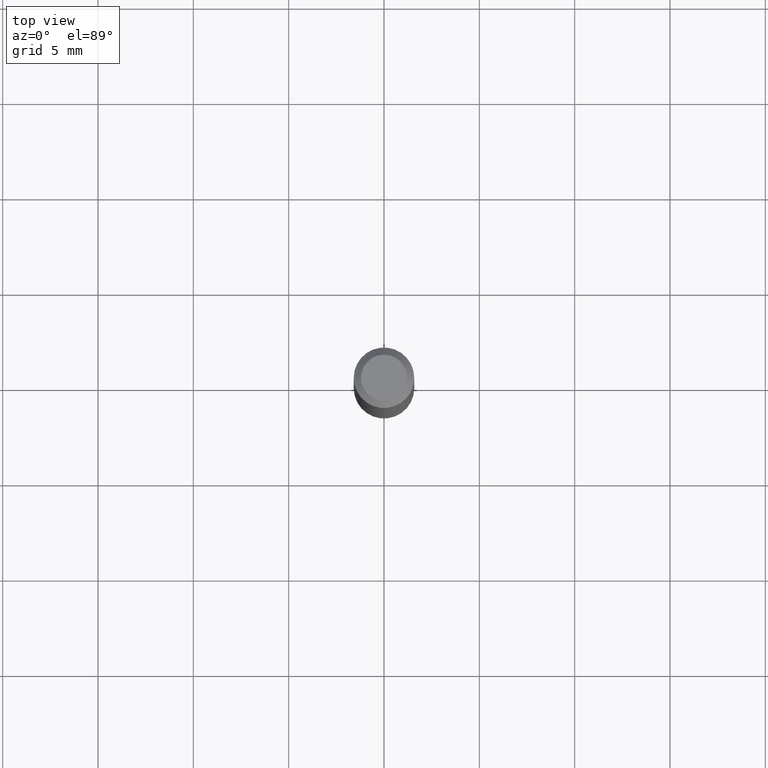
[diagram: clean part render]
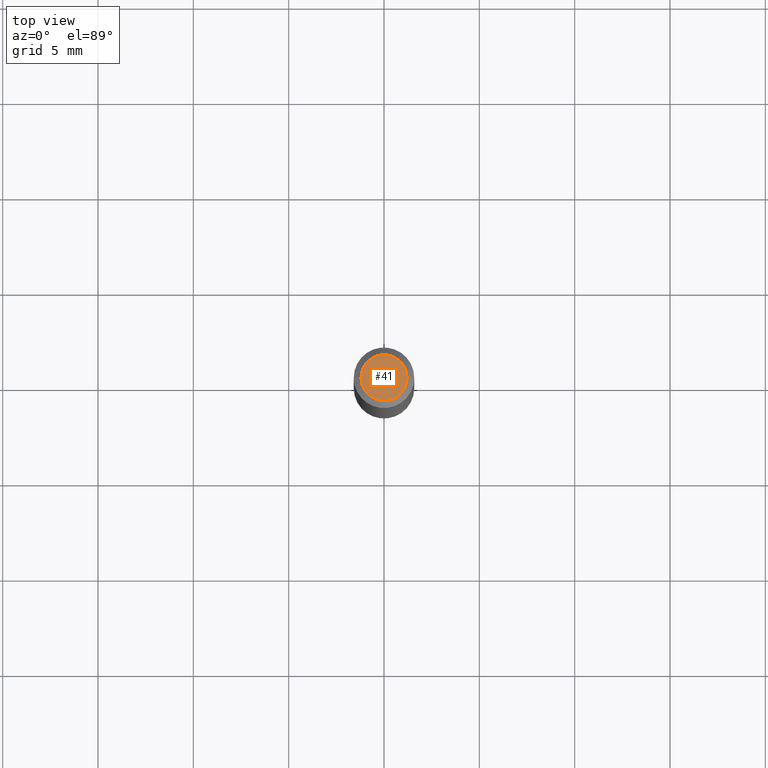
[diagram: same view with one face highlighted and labeled with its STEP entity id]
A machine part, top view. The second image highlights one B-rep face of the part: STEP entity #41.
In plain terms, the highlighted planar face has unit normal (0, -0, -1).
Its self-contained STEP definition (entity closure, byte-faithful):
#7 = CIRCLE ( 'NONE', #67, 0.04749999999999999362 ) ;
#15 = CARTESIAN_POINT ( 'NONE',  ( -0.04749999999999999362, 3.578768372314273615E-16, 3.591734821858150433E-15 ) ) ;
#31 = ORIENTED_EDGE ( 'NONE', *, *, #321, .T. ) ;
#41 = ADVANCED_FACE ( 'NONE', ( #97 ), #136, .F. ) ;
#49 = ORIENTED_EDGE ( 'NONE', *, *, #328, .T. ) ;
#67 = AXIS2_PLACEMENT_3D ( 'NONE', #392, #223, #253 ) ;
#93 = CARTESIAN_POINT ( 'NONE',  ( 0.04749999999999999362, -4.035134999187516007E-16, 3.591734821858155166E-15 ) ) ;
#96 = VERTEX_POINT ( 'NONE', #93 ) ;
#97 = FACE_OUTER_BOUND ( 'NONE', #408, .T. ) ;
#127 = DIRECTION ( 'NONE',  ( 2.438088387897960049E-29, -3.491481338843145188E-15, -1.000000000000000000 ) ) ;
#136 = PLANE ( 'NONE',  #180 ) ;
#145 = CARTESIAN_POINT ( 'NONE',  ( -8.783475466943041190E-44, 1.254047510459085029E-29, 3.591734821858152800E-15 ) ) ;
#146 = CIRCLE ( 'NONE', #360, 0.04749999999999999362 ) ;
#170 = DIRECTION ( 'NONE',  ( -2.445468806185136597E-29, 3.491481338843145583E-15, 1.000000000000000000 ) ) ;
#180 = AXIS2_PLACEMENT_3D ( 'NONE', #250, #127, #317 ) ;
#223 = DIRECTION ( 'NONE',  ( -2.445468806185136597E-29, 3.491481338843145583E-15, 1.000000000000000000 ) ) ;
#250 = CARTESIAN_POINT ( 'NONE',  ( 3.316907271900976096E-16, 0.04749999999999999362, 1.630022047334026855E-15 ) ) ;
#253 = DIRECTION ( 'NONE',  ( 1.000000000000000000, -6.982962677686267499E-15, 5.108144071313017768E-29 ) ) ;
#317 = DIRECTION ( 'NONE',  ( -1.000000000000000000, 6.982962677686265922E-15, -4.876176775795935793E-29 ) ) ;
#321 = EDGE_CURVE ( 'NONE', #410, #96, #7, .T. ) ;
#328 = EDGE_CURVE ( 'NONE', #96, #410, #146, .T. ) ;
#360 = AXIS2_PLACEMENT_3D ( 'NONE', #145, #170, #399 ) ;
#392 = CARTESIAN_POINT ( 'NONE',  ( -8.783475466943041190E-44, 1.254047510459085029E-29, 3.591734821858152800E-15 ) ) ;
#399 = DIRECTION ( 'NONE',  ( 1.000000000000000000, -6.982962677686267499E-15, 5.108144071313017768E-29 ) ) ;
#408 = EDGE_LOOP ( 'NONE', ( #31, #49 ) ) ;
#410 = VERTEX_POINT ( 'NONE', #15 ) ;